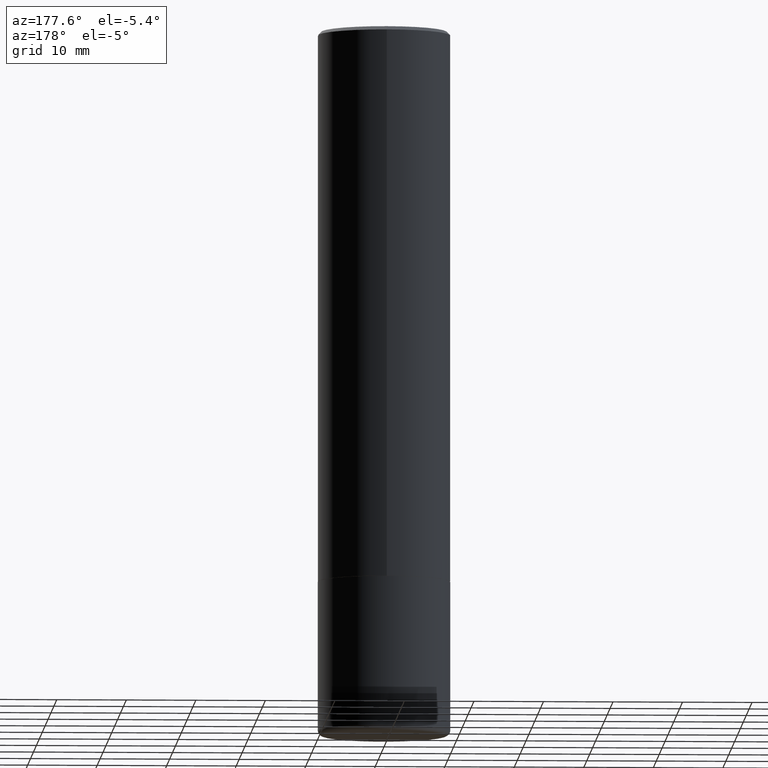
[diagram: clean part render]
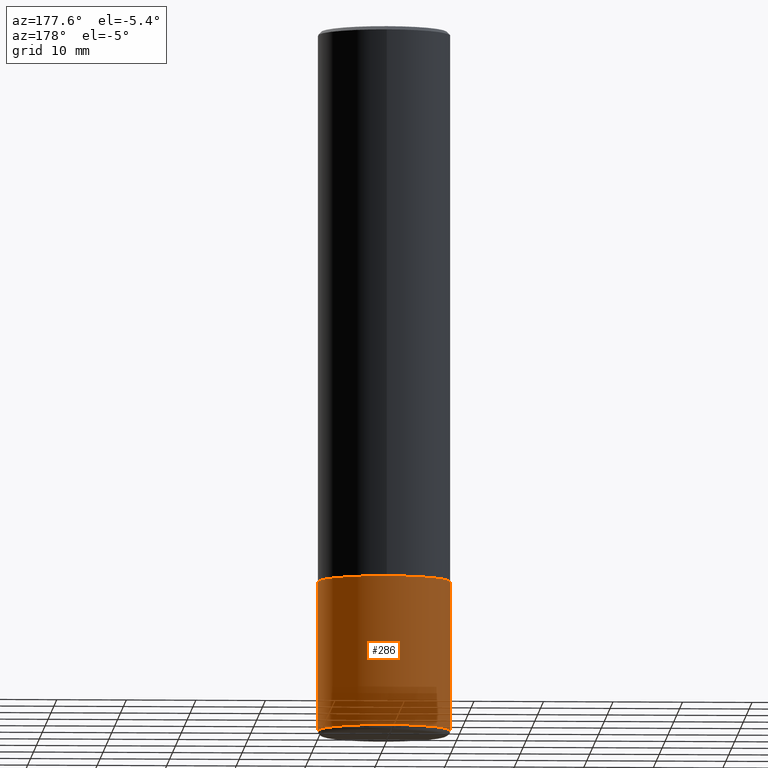
[diagram: same view with one face highlighted and labeled with its STEP entity id]
A machine part, auxiliary view. The second image highlights one B-rep face of the part: STEP entity #286.
In plain terms, the highlighted cylindrical surface (partial cylindrical patch) has radius 9.525 mm, axis along (-0, 0, 1).
Its self-contained STEP definition (entity closure, byte-faithful):
#1 = AXIS2_PLACEMENT_3D ( 'NONE', #22, #353, #398 ) ;
#5 = VERTEX_POINT ( 'NONE', #239 ) ;
#8 = ORIENTED_EDGE ( 'NONE', *, *, #225, .F. ) ;
#20 = EDGE_CURVE ( 'NONE', #234, #5, #125, .T. ) ;
#22 = CARTESIAN_POINT ( 'NONE',  ( 0.000000000000000000, 0.000000000000000000, 0.000000000000000000 ) ) ;
#38 = CARTESIAN_POINT ( 'NONE',  ( 9.708511160554992872E-29, -1.386118091520728738E-14, -3.970000000000000195 ) ) ;
#41 = DIRECTION ( 'NONE',  ( -2.445468806185136597E-29, 3.491481338843145583E-15, 1.000000000000000000 ) ) ;
#47 = CARTESIAN_POINT ( 'NONE',  ( 0.3750000000000000555, -2.618611004132350016E-15, 1.828566290923476203E-29 ) ) ;
#49 = CARTESIAN_POINT ( 'NONE',  ( -0.3750000000000000555, -9.721494790445683584E-15, -3.125000000000000000 ) ) ;
#52 = FACE_OUTER_BOUND ( 'NONE', #139, .T. ) ;
#63 = CARTESIAN_POINT ( 'NONE',  ( -0.3750000000000000555, 2.664535259100376091E-15, -1.844600658845589598E-29 ) ) ;
#79 = CIRCLE ( 'NONE', #327, 0.3750000000000000555 ) ;
#82 = CYLINDRICAL_SURFACE ( 'NONE', #1, 0.3750000000000000555 ) ;
#123 = VECTOR ( 'NONE', #280, 39.37007874015748143 ) ;
#125 = CIRCLE ( 'NONE', #235, 0.3750000000000000555 ) ;
#139 = EDGE_LOOP ( 'NONE', ( #140, #365, #262, #8 ) ) ;
#140 = ORIENTED_EDGE ( 'NONE', *, *, #20, .T. ) ;
#151 = DIRECTION ( 'NONE',  ( 1.000000000000000000, -6.982962677686266711E-15, 0.000000000000000000 ) ) ;
#164 = EDGE_CURVE ( 'NONE', #200, #370, #79, .T. ) ;
#167 = DIRECTION ( 'NONE',  ( -2.445468806185136597E-29, 3.491481338843145583E-15, 1.000000000000000000 ) ) ;
#196 = EDGE_CURVE ( 'NONE', #5, #370, #362, .T. ) ;
#200 = VERTEX_POINT ( 'NONE', #268 ) ;
#225 = EDGE_CURVE ( 'NONE', #234, #200, #346, .T. ) ;
#234 = VERTEX_POINT ( 'NONE', #278 ) ;
#235 = AXIS2_PLACEMENT_3D ( 'NONE', #38, #167, #151 ) ;
#236 = DIRECTION ( 'NONE',  ( 1.000000000000000000, -6.982962677686266711E-15, 0.000000000000000000 ) ) ;
#239 = CARTESIAN_POINT ( 'NONE',  ( -0.3749999999999999445, -1.119664565610691011E-14, -3.970000000000000195 ) ) ;
#262 = ORIENTED_EDGE ( 'NONE', *, *, #164, .F. ) ;
#268 = CARTESIAN_POINT ( 'NONE',  ( 0.3750000000000000555, -1.352949018801718119E-14, -3.125000000000000000 ) ) ;
#278 = CARTESIAN_POINT ( 'NONE',  ( 0.3749999999999999445, -1.647979191933963740E-14, -3.970000000000000195 ) ) ;
#280 = DIRECTION ( 'NONE',  ( -2.445468806185136877E-29, 3.491481338843145188E-15, 1.000000000000000000 ) ) ;
#286 = ADVANCED_FACE ( 'NONE', ( #52 ), #82, .T. ) ;
#300 = DIRECTION ( 'NONE',  ( -2.445468806185136877E-29, 3.491481338843145188E-15, 1.000000000000000000 ) ) ;
#311 = VECTOR ( 'NONE', #300, 39.37007874015748143 ) ;
#327 = AXIS2_PLACEMENT_3D ( 'NONE', #334, #41, #236 ) ;
#334 = CARTESIAN_POINT ( 'NONE',  ( 7.642090019328551865E-29, -1.091087918388483118E-14, -3.125000000000000000 ) ) ;
#346 = LINE ( 'NONE', #47, #123 ) ;
#353 = DIRECTION ( 'NONE',  ( -2.445468806185136597E-29, 3.491481338843145583E-15, 1.000000000000000000 ) ) ;
#362 = LINE ( 'NONE', #63, #311 ) ;
#365 = ORIENTED_EDGE ( 'NONE', *, *, #196, .T. ) ;
#370 = VERTEX_POINT ( 'NONE', #49 ) ;
#398 = DIRECTION ( 'NONE',  ( 1.000000000000000000, -6.982962677686265922E-15, 4.876176775795935793E-29 ) ) ;